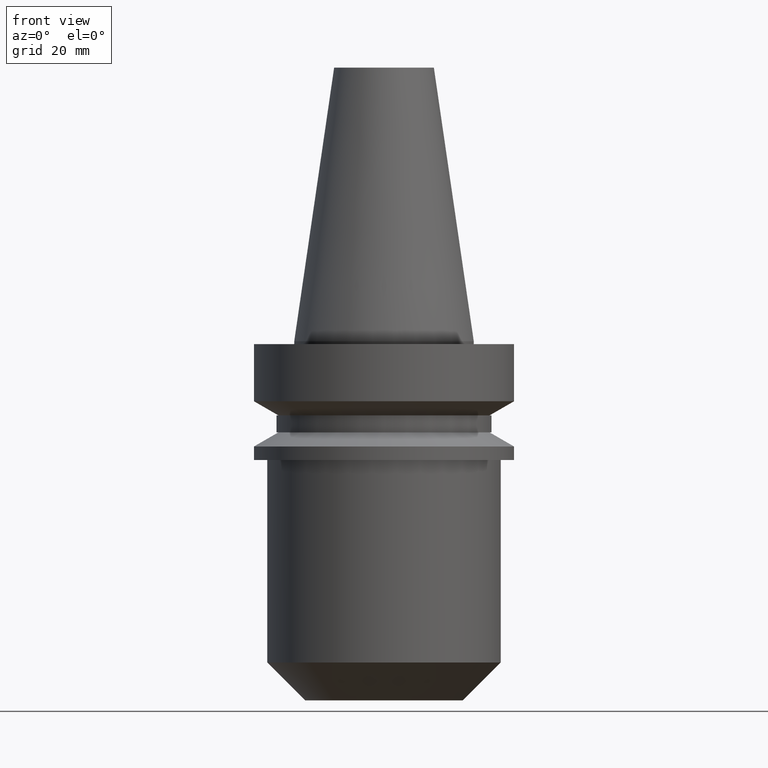
[diagram: clean part render]
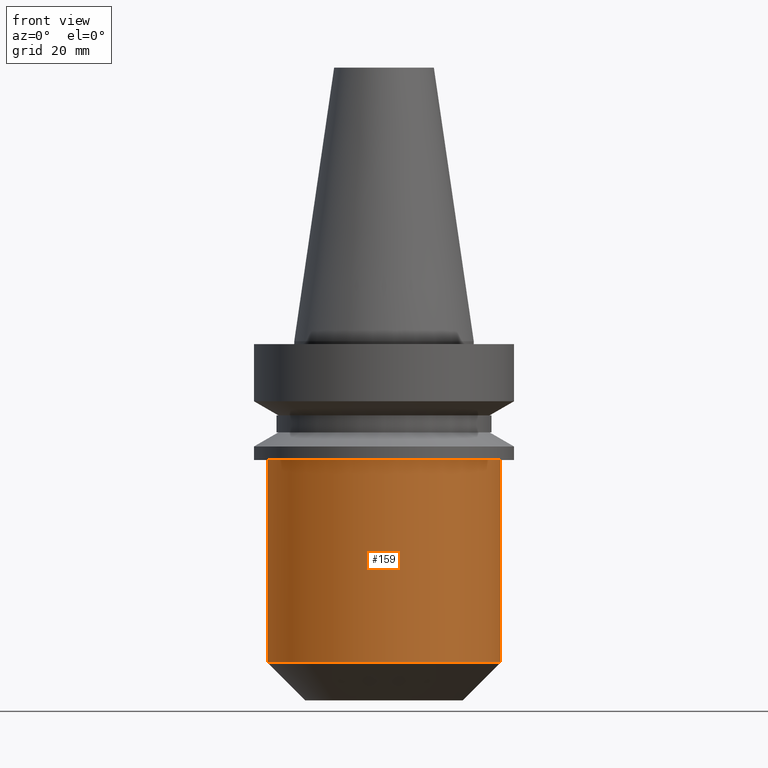
[diagram: same view with one face highlighted and labeled with its STEP entity id]
A machine part, front view. The second image highlights one B-rep face of the part: STEP entity #159.
In plain terms, the highlighted cylindrical surface (partial cylindrical patch) has radius 20.64 mm, axis along (-0, -0, 1).
Its self-contained STEP definition (entity closure, byte-faithful):
#13 = EDGE_CURVE ( 'NONE', #107, #721, #763, .T. ) ;
#32 = EDGE_CURVE ( 'NONE', #273, #107, #75, .T. ) ;
#35 = DIRECTION ( 'NONE',  ( 1.000000000000000000, 0.000000000000000000, 0.000000000000000000 ) ) ;
#51 = DIRECTION ( 'NONE',  ( 1.000000000000000000, 0.000000000000000000, 0.000000000000000000 ) ) ;
#53 = FACE_OUTER_BOUND ( 'NONE', #602, .T. ) ;
#54 = EDGE_CURVE ( 'NONE', #721, #622, #58, .T. ) ;
#55 = DIRECTION ( 'NONE',  ( -0.000000000000000000, -0.000000000000000000, 1.000000000000000000 ) ) ;
#58 = CIRCLE ( 'NONE', #564, 20.64000000000000412 ) ;
#59 = AXIS2_PLACEMENT_3D ( 'NONE', #605, #425, #189 ) ;
#75 = CIRCLE ( 'NONE', #476, 20.64000000000000057 ) ;
#107 = VERTEX_POINT ( 'NONE', #601 ) ;
#112 = CARTESIAN_POINT ( 'NONE',  ( 0.000000000000000000, 0.000000000000000000, -56.80000000000000426 ) ) ;
#113 = CARTESIAN_POINT ( 'NONE',  ( -20.64000000000000412, 2.527670993440137734E-15, -20.99999999999999645 ) ) ;
#117 = LINE ( 'NONE', #240, #543 ) ;
#159 = ADVANCED_FACE ( 'NONE', ( #53 ), #667, .T. ) ;
#189 = DIRECTION ( 'NONE',  ( 1.000000000000000000, 0.000000000000000000, 0.000000000000000000 ) ) ;
#194 = ORIENTED_EDGE ( 'NONE', *, *, #584, .F. ) ;
#240 = CARTESIAN_POINT ( 'NONE',  ( -20.64000000000000412, 2.527670993440137734E-15, 0.000000000000000000 ) ) ;
#273 = VERTEX_POINT ( 'NONE', #314 ) ;
#314 = CARTESIAN_POINT ( 'NONE',  ( -20.64000000000000057, 2.527670993440137339E-15, -56.80000000000000426 ) ) ;
#325 = ORIENTED_EDGE ( 'NONE', *, *, #32, .T. ) ;
#346 = DIRECTION ( 'NONE',  ( -0.000000000000000000, -0.000000000000000000, 1.000000000000000000 ) ) ;
#425 = DIRECTION ( 'NONE',  ( -0.000000000000000000, -0.000000000000000000, 1.000000000000000000 ) ) ;
#426 = ORIENTED_EDGE ( 'NONE', *, *, #54, .T. ) ;
#464 = VECTOR ( 'NONE', #472, 1000.000000000000000 ) ;
#472 = DIRECTION ( 'NONE',  ( -0.000000000000000000, -0.000000000000000000, 1.000000000000000000 ) ) ;
#476 = AXIS2_PLACEMENT_3D ( 'NONE', #112, #346, #51 ) ;
#495 = CARTESIAN_POINT ( 'NONE',  ( 20.64000000000000412, 0.000000000000000000, -20.99999999999999645 ) ) ;
#543 = VECTOR ( 'NONE', #55, 1000.000000000000000 ) ;
#564 = AXIS2_PLACEMENT_3D ( 'NONE', #701, #708, #35 ) ;
#584 = EDGE_CURVE ( 'NONE', #273, #622, #117, .T. ) ;
#601 = CARTESIAN_POINT ( 'NONE',  ( 20.64000000000000057, 0.000000000000000000, -56.80000000000000426 ) ) ;
#602 = EDGE_LOOP ( 'NONE', ( #194, #325, #717, #426 ) ) ;
#605 = CARTESIAN_POINT ( 'NONE',  ( 0.000000000000000000, 0.000000000000000000, 0.000000000000000000 ) ) ;
#622 = VERTEX_POINT ( 'NONE', #113 ) ;
#651 = CARTESIAN_POINT ( 'NONE',  ( 20.64000000000000412, 0.000000000000000000, 0.000000000000000000 ) ) ;
#667 = CYLINDRICAL_SURFACE ( 'NONE', #59, 20.64000000000000412 ) ;
#701 = CARTESIAN_POINT ( 'NONE',  ( 0.000000000000000000, 0.000000000000000000, -20.99999999999999645 ) ) ;
#708 = DIRECTION ( 'NONE',  ( 0.000000000000000000, 0.000000000000000000, -1.000000000000000000 ) ) ;
#717 = ORIENTED_EDGE ( 'NONE', *, *, #13, .T. ) ;
#721 = VERTEX_POINT ( 'NONE', #495 ) ;
#763 = LINE ( 'NONE', #651, #464 ) ;